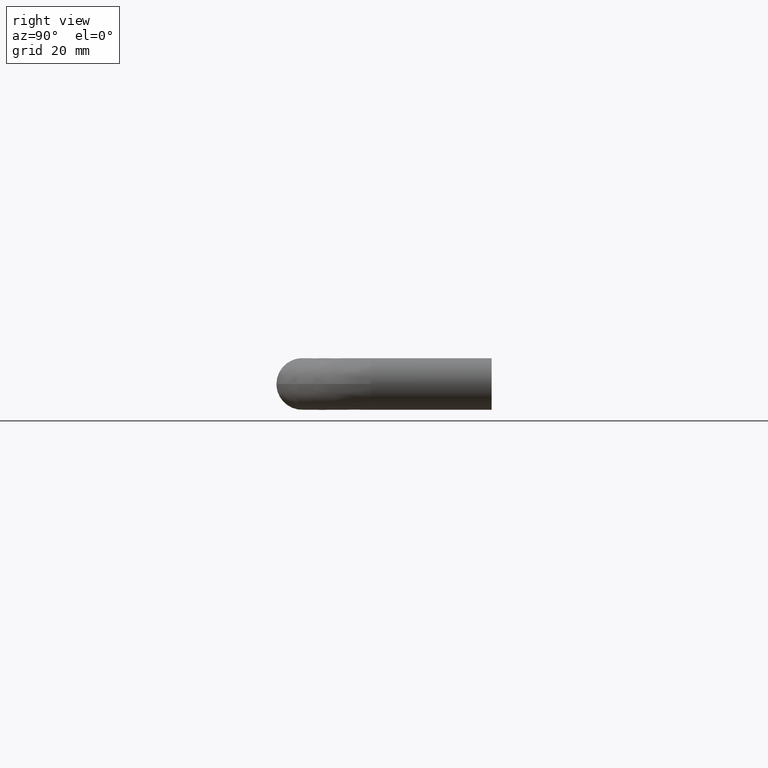
[diagram: clean part render]
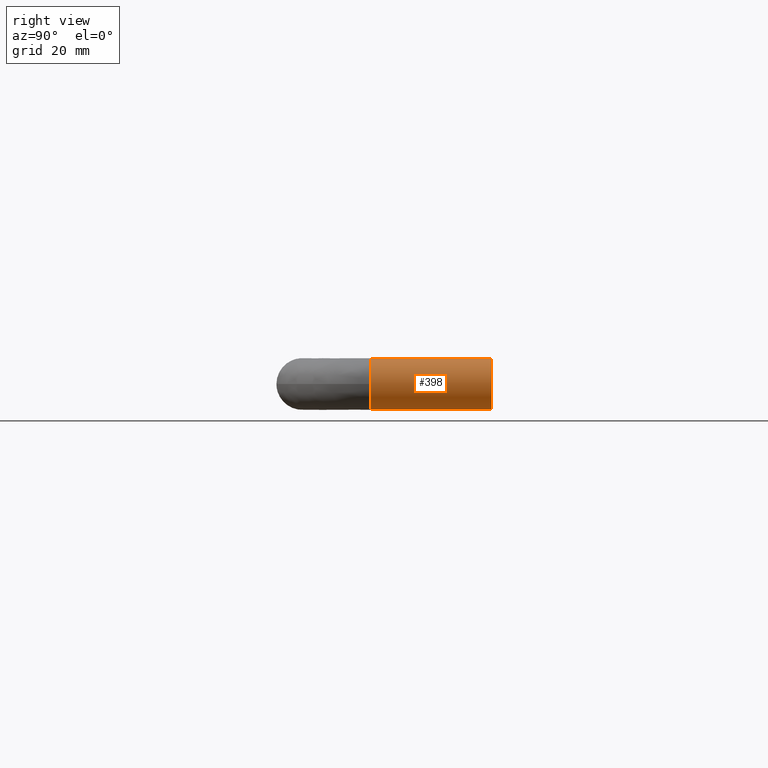
[diagram: same view with one face highlighted and labeled with its STEP entity id]
A machine part, right view. The second image highlights one B-rep face of the part: STEP entity #398.
In plain terms, the highlighted face is a freeform B-spline surface patch.
Its self-contained STEP definition (entity closure, byte-faithful):
#204=CARTESIAN_POINT('',(150.470754574599400,1.749989E-014,5.981504002380483));
#205=VERTEX_POINT('',#204);
#223=CARTESIAN_POINT('',(156.0,1.734723E-014,0.0));
#224=VERTEX_POINT('',#223);
#225=CARTESIAN_POINT('',(156.0,1.734723E-014,0.0));
#226=CARTESIAN_POINT('',(155.999999999999970,1.734723E-014,5.546342949733163));
#227=CARTESIAN_POINT('',(150.470754574599310,1.734723E-014,5.981504002380484));
#235=(BOUNDED_CURVE()B_SPLINE_CURVE(2,(#225,#226,#227),.UNSPECIFIED.,.F.,.U.)B_SPLINE_CURVE_WITH_KNOTS((3,3),(0.500000000000000,0.736331300626109),.UNSPECIFIED.)CURVE()GEOMETRIC_REPRESENTATION_ITEM()RATIONAL_B_SPLINE_CURVE((1.0,0.723120658612997,0.969723356157921))REPRESENTATION_ITEM(''));
#236=EDGE_CURVE('',#224,#205,#235,.T.);
#238=CARTESIAN_POINT('',(149.529245425400600,1.749989E-014,-5.981504002380483));
#239=VERTEX_POINT('',#238);
#240=CARTESIAN_POINT('',(149.529245425400570,1.734723E-014,-5.981504002380484));
#241=CARTESIAN_POINT('',(149.764259357837290,1.734723E-014,-6.0));
#242=CARTESIAN_POINT('',(150.0,1.734723E-014,-6.0));
#243=CARTESIAN_POINT('',(155.999999999999970,1.734723E-014,-6.0));
#244=CARTESIAN_POINT('',(156.0,1.734723E-014,0.0));
#252=(BOUNDED_CURVE()B_SPLINE_CURVE(2,(#240,#241,#242,#243,#244),.UNSPECIFIED.,.F.,.U.)B_SPLINE_CURVE_WITH_KNOTS((3,2,3),(0.236331300626108,0.250000000000000,0.500000000000000),.UNSPECIFIED.)CURVE()GEOMETRIC_REPRESENTATION_ITEM()RATIONAL_B_SPLINE_CURVE((0.969723356157920,0.983986122573550,1.0,0.707106781186548,1.0))REPRESENTATION_ITEM(''));
#253=EDGE_CURVE('',#239,#224,#252,.T.);
#297=CARTESIAN_POINT('',(149.529245425400600,-27.999987601051860,-5.981504002381076));
#298=VERTEX_POINT('',#297);
#312=CARTESIAN_POINT('',(150.470754574599310,-27.999985489720380,5.981504002379788));
#313=VERTEX_POINT('',#312);
#329=CARTESIAN_POINT('',(150.470754574599310,-27.999985489720380,5.981504002379788));
#330=CARTESIAN_POINT('',(150.470754574599400,1.749989E-014,5.981504002380483));
#331=QUASI_UNIFORM_CURVE('',1,(#329,#330),.UNSPECIFIED.,.F.,.U.);
#332=EDGE_CURVE('',#313,#205,#331,.T.);
#336=CARTESIAN_POINT('',(149.529245425400600,-27.999987601051860,-5.981504002381076));
#337=CARTESIAN_POINT('',(149.529245425400600,1.749989E-014,-5.981504002380483));
#338=QUASI_UNIFORM_CURVE('',1,(#336,#337),.UNSPECIFIED.,.F.,.U.);
#339=EDGE_CURVE('',#298,#239,#338,.T.);
#344=CARTESIAN_POINT('',(150.470754574367110,-28.700000000377589,5.981504002398766));
#345=CARTESIAN_POINT('',(156.452258576765810,-28.700000000377589,5.510749428031692));
#346=CARTESIAN_POINT('',(155.981504002398790,-28.700000000377589,-0.470754574367073));
#347=CARTESIAN_POINT('',(155.510749428031660,-28.700000000377589,-6.452258576765839));
#348=CARTESIAN_POINT('',(149.529245425632890,-28.700000000377589,-5.981504002398766));
#349=CARTESIAN_POINT('',(150.470754574367110,0.717500000009458,5.981504002398766));
#350=CARTESIAN_POINT('',(156.452258576765810,0.717500000009459,5.510749428031692));
#351=CARTESIAN_POINT('',(155.981504002398790,0.717500000009458,-0.470754574367073));
#352=CARTESIAN_POINT('',(155.510749428031660,0.717500000009459,-6.452258576765839));
#353=CARTESIAN_POINT('',(149.529245425632890,0.717500000009458,-5.981504002398766));
#361=(BOUNDED_SURFACE()B_SPLINE_SURFACE(2,1,((#344,#349),(#345,#350),(#346,#351),(#347,#352),(#348,#353)),.UNSPECIFIED.,.F.,.F.,.U.)B_SPLINE_SURFACE_WITH_KNOTS((3,2,3),(2,2),(0.0,9.941125496954307,19.882250993908610),(0.0,29.417500000387051),.UNSPECIFIED.)GEOMETRIC_REPRESENTATION_ITEM()RATIONAL_B_SPLINE_SURFACE(((1.0,1.0),(0.707106781186548,0.707106781186548),(1.0,1.0),(0.707106781186548,0.707106781186548),(1.0,1.0)))REPRESENTATION_ITEM('')SURFACE());
#362=CARTESIAN_POINT('',(155.999999999967090,-27.999973090403870,-7.347638E-016));
#363=VERTEX_POINT('',#362);
#364=CARTESIAN_POINT('',(149.529245425400520,-27.999987601051860,-5.981504002381076));
#365=CARTESIAN_POINT('',(149.764259357829050,-27.999987074033822,-6.000000000000001));
#366=CARTESIAN_POINT('',(149.999999999983490,-27.999986545386129,-6.000000000000001));
#367=CARTESIAN_POINT('',(155.999999999967170,-27.999973090403870,-6.000000000000003));
#368=CARTESIAN_POINT('',(155.999999999967090,-27.999973090403870,-7.347638E-016));
#376=(BOUNDED_CURVE()B_SPLINE_CURVE(2,(#364,#365,#366,#367,#368),.UNSPECIFIED.,.F.,.U.)B_SPLINE_CURVE_WITH_KNOTS((3,2,3),(0.472662601253080,0.500000000000000,1.0),.UNSPECIFIED.)CURVE()GEOMETRIC_REPRESENTATION_ITEM()RATIONAL_B_SPLINE_CURVE((0.969723356158820,0.983986122574055,1.0,0.707106781186548,1.0))REPRESENTATION_ITEM(''));
#377=EDGE_CURVE('',#298,#363,#376,.T.);
#378=ORIENTED_EDGE('',*,*,#377,.F.);
#379=ORIENTED_EDGE('',*,*,#339,.T.);
#380=ORIENTED_EDGE('',*,*,#253,.T.);
#381=ORIENTED_EDGE('',*,*,#236,.T.);
#382=ORIENTED_EDGE('',*,*,#332,.F.);
#383=CARTESIAN_POINT('',(155.999999999967090,-27.999973090403870,-7.347638E-016));
#384=CARTESIAN_POINT('',(155.999999999967140,-27.999973090403873,5.546342949717099));
#385=CARTESIAN_POINT('',(150.470754574599310,-27.999985489720384,5.981504002379788));
#393=(BOUNDED_CURVE()B_SPLINE_CURVE(2,(#383,#384,#385),.UNSPECIFIED.,.F.,.U.)B_SPLINE_CURVE_WITH_KNOTS((3,3),(0.0,0.472662601251207),.UNSPECIFIED.)CURVE()GEOMETRIC_REPRESENTATION_ITEM()RATIONAL_B_SPLINE_CURVE((1.0,0.723120658613589,0.969723356156866))REPRESENTATION_ITEM(''));
#394=EDGE_CURVE('',#363,#313,#393,.T.);
#395=ORIENTED_EDGE('',*,*,#394,.F.);
#396=EDGE_LOOP('',(#378,#379,#380,#381,#382,#395));
#397=FACE_OUTER_BOUND('',#396,.T.);
#398=ADVANCED_FACE('',(#397),#361,.T.);